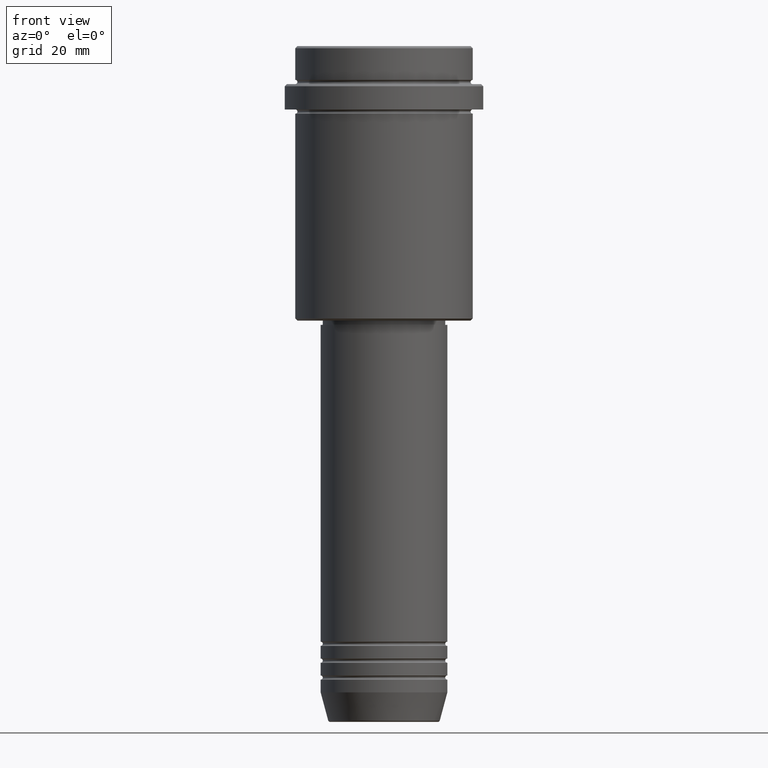
[diagram: clean part render]
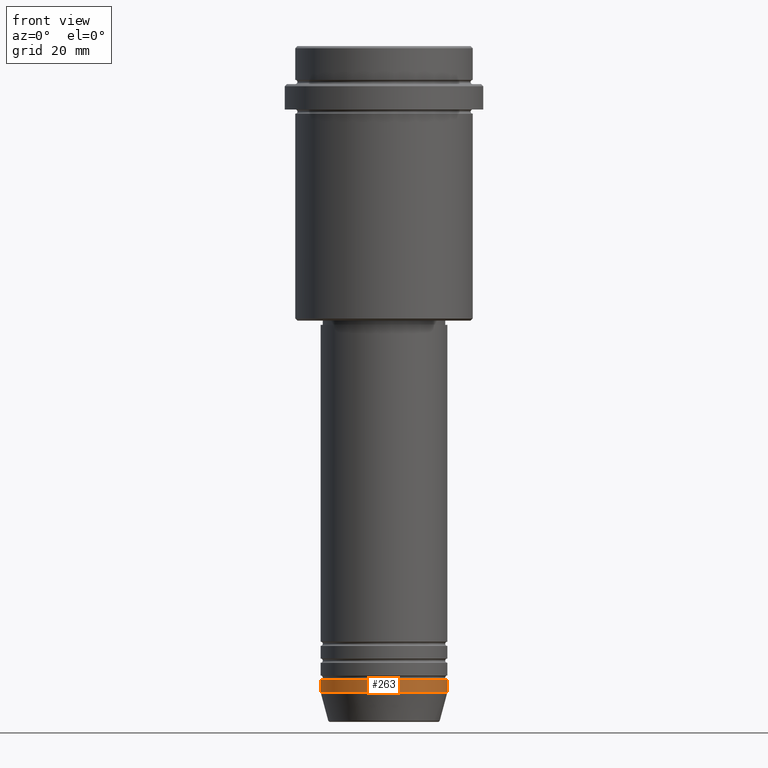
[diagram: same view with one face highlighted and labeled with its STEP entity id]
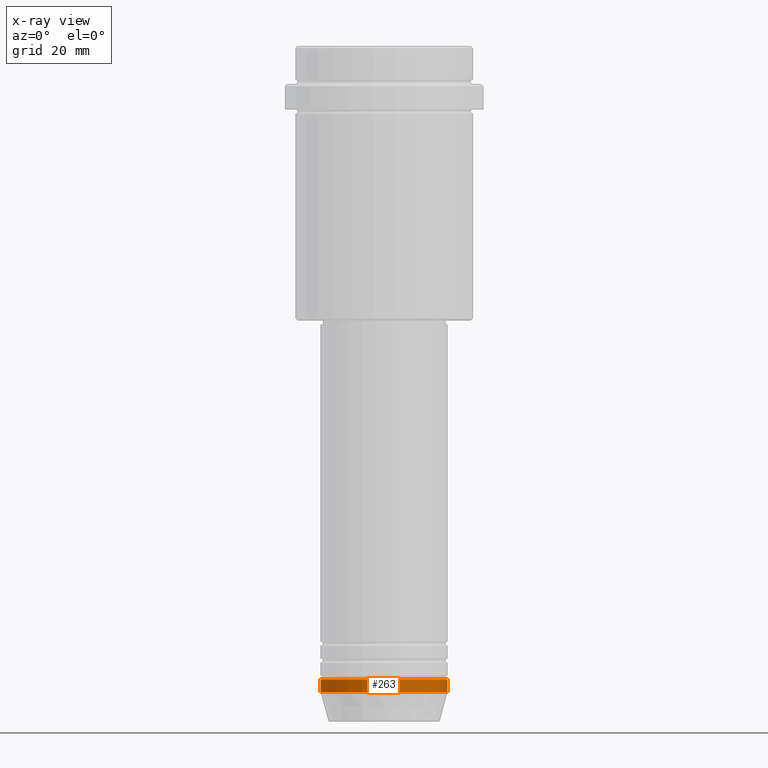
[diagram: x-ray of the same camera — body ghosted, the highlighted face saturated]
A machine part, front view. The second image highlights one B-rep face of the part: STEP entity #263.
The next image is the same camera in x-ray: the body ghosted, the highlighted face saturated — about 0% of this face is hidden behind the body in this view.
In plain terms, the highlighted cylindrical surface (partial cylindrical patch) has radius 15 mm, axis along (-0, -0, 1).
Its self-contained STEP definition (entity closure, byte-faithful):
#5 = ORIENTED_EDGE ( 'NONE', *, *, #109, .T. ) ;
#22 = VERTEX_POINT ( 'NONE', #906 ) ;
#58 = DIRECTION ( 'NONE',  ( -0.000000000000000000, -0.000000000000000000, 1.000000000000000000 ) ) ;
#78 = CARTESIAN_POINT ( 'NONE',  ( -15.00000000000000000, 1.836970198721029589E-15, 0.000000000000000000 ) ) ;
#109 = EDGE_CURVE ( 'NONE', #593, #298, #1136, .T. ) ;
#171 = CARTESIAN_POINT ( 'NONE',  ( 0.000000000000000000, 0.000000000000000000, -153.0000000000000000 ) ) ;
#255 = AXIS2_PLACEMENT_3D ( 'NONE', #983, #1319, #1408 ) ;
#259 = VERTEX_POINT ( 'NONE', #552 ) ;
#263 = ADVANCED_FACE ( 'NONE', ( #419 ), #652, .T. ) ;
#298 = VERTEX_POINT ( 'NONE', #726 ) ;
#386 = LINE ( 'NONE', #78, #520 ) ;
#419 = FACE_OUTER_BOUND ( 'NONE', #1321, .T. ) ;
#425 = VECTOR ( 'NONE', #1288, 1000.000000000000000 ) ;
#473 = DIRECTION ( 'NONE',  ( -0.000000000000000000, -0.000000000000000000, 1.000000000000000000 ) ) ;
#499 = AXIS2_PLACEMENT_3D ( 'NONE', #171, #619, #946 ) ;
#520 = VECTOR ( 'NONE', #58, 1000.000000000000000 ) ;
#552 = CARTESIAN_POINT ( 'NONE',  ( 15.00000000000000000, 0.000000000000000000, -150.0000000000000000 ) ) ;
#593 = VERTEX_POINT ( 'NONE', #885 ) ;
#619 = DIRECTION ( 'NONE',  ( -0.000000000000000000, -0.000000000000000000, 1.000000000000000000 ) ) ;
#652 = CYLINDRICAL_SURFACE ( 'NONE', #255, 15.00000000000000000 ) ;
#680 = CARTESIAN_POINT ( 'NONE',  ( 0.000000000000000000, 0.000000000000000000, -150.0000000000000000 ) ) ;
#726 = CARTESIAN_POINT ( 'NONE',  ( 15.00000000000000000, 0.000000000000000000, -153.0000000000000000 ) ) ;
#762 = CARTESIAN_POINT ( 'NONE',  ( 15.00000000000000000, 0.000000000000000000, 0.000000000000000000 ) ) ;
#768 = LINE ( 'NONE', #762, #425 ) ;
#773 = ORIENTED_EDGE ( 'NONE', *, *, #1061, .T. ) ;
#792 = DIRECTION ( 'NONE',  ( 1.000000000000000000, 0.000000000000000000, 0.000000000000000000 ) ) ;
#883 = EDGE_CURVE ( 'NONE', #593, #22, #386, .T. ) ;
#885 = CARTESIAN_POINT ( 'NONE',  ( -15.00000000000000000, 1.836970198721029589E-15, -153.0000000000000000 ) ) ;
#906 = CARTESIAN_POINT ( 'NONE',  ( -15.00000000000000000, 1.836970198721029589E-15, -150.0000000000000000 ) ) ;
#946 = DIRECTION ( 'NONE',  ( 1.000000000000000000, 0.000000000000000000, 0.000000000000000000 ) ) ;
#956 = AXIS2_PLACEMENT_3D ( 'NONE', #680, #473, #792 ) ;
#983 = CARTESIAN_POINT ( 'NONE',  ( 0.000000000000000000, 0.000000000000000000, 0.000000000000000000 ) ) ;
#1061 = EDGE_CURVE ( 'NONE', #298, #259, #768, .T. ) ;
#1133 = ORIENTED_EDGE ( 'NONE', *, *, #883, .F. ) ;
#1136 = CIRCLE ( 'NONE', #499, 15.00000000000000000 ) ;
#1200 = ORIENTED_EDGE ( 'NONE', *, *, #1221, .F. ) ;
#1221 = EDGE_CURVE ( 'NONE', #22, #259, #1383, .T. ) ;
#1288 = DIRECTION ( 'NONE',  ( -0.000000000000000000, -0.000000000000000000, 1.000000000000000000 ) ) ;
#1319 = DIRECTION ( 'NONE',  ( -0.000000000000000000, -0.000000000000000000, 1.000000000000000000 ) ) ;
#1321 = EDGE_LOOP ( 'NONE', ( #1133, #5, #773, #1200 ) ) ;
#1383 = CIRCLE ( 'NONE', #956, 15.00000000000000000 ) ;
#1408 = DIRECTION ( 'NONE',  ( 1.000000000000000000, 0.000000000000000000, 0.000000000000000000 ) ) ;